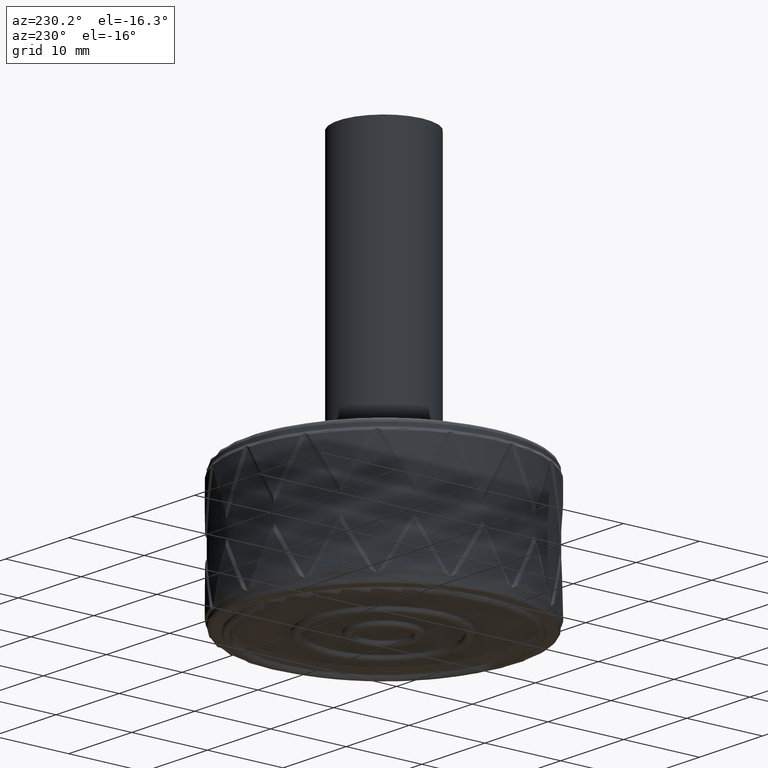
[diagram: clean part render]
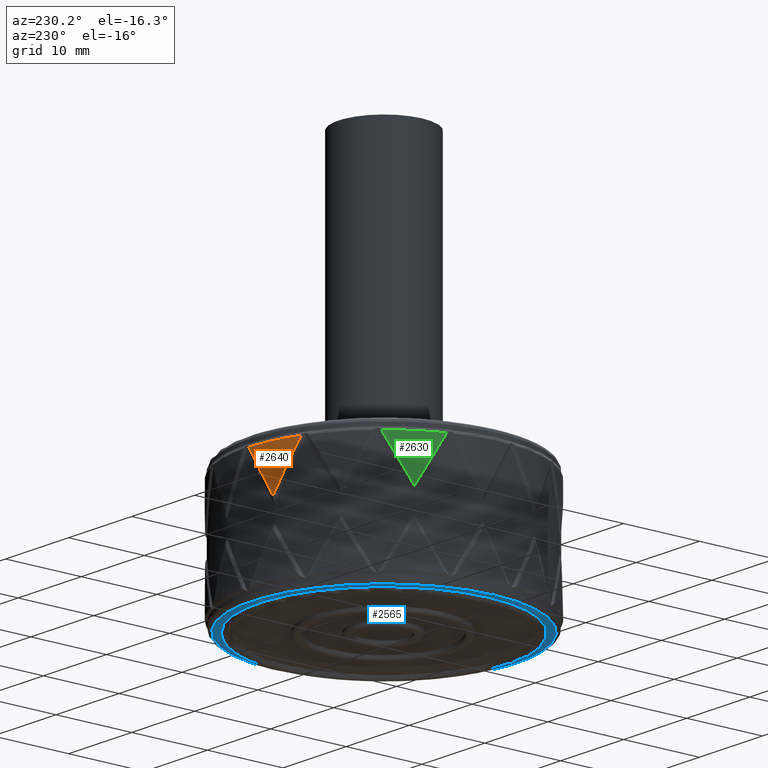
[diagram: same view with three faces highlighted in distinct colors, each labeled with its STEP entity id]
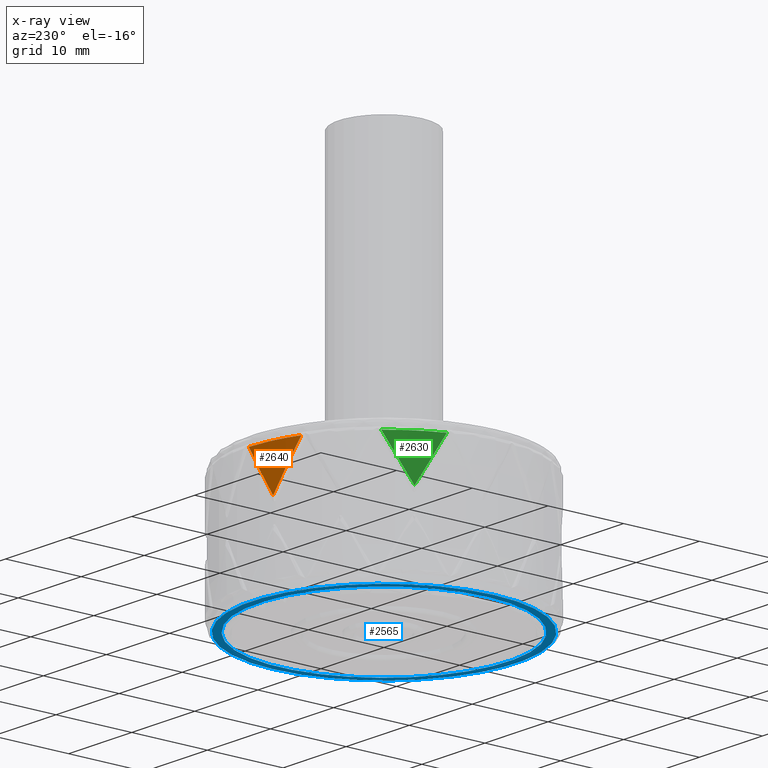
[diagram: x-ray of the same camera — body ghosted, the three highlighted faces saturated]
A machine part, auxiliary view with three faces highlighted in distinct colors.
The next image is the same camera in x-ray (body ghosted, the three faces saturated) — at least one of them is partly hidden behind the body in this view.
Their STEP definitions:

[orange] entity #2640 — the highlighted cylindrical surface (partial cylindrical patch) has radius 18.2 mm, axis along (0, 0, 1).
#383=B_SPLINE_CURVE_WITH_KNOTS('',3,(#8209,#8210,#8211,#8212),
 .UNSPECIFIED.,.F.,.F.,(4,4),(0.068859223008688,0.73881707339551),
 .UNSPECIFIED.);
#388=B_SPLINE_CURVE_WITH_KNOTS('',3,(#8262,#8263,#8264,#8265),
 .UNSPECIFIED.,.F.,.F.,(4,4),(0.068404336274397,0.729777223361327),
 .UNSPECIFIED.);
#391=B_SPLINE_CURVE_WITH_KNOTS('',3,(#8310,#8311,#8312,#8313),
 .UNSPECIFIED.,.F.,.F.,(4,4),(0.0352149630250178,0.705171513300833),
 .UNSPECIFIED.);
#663=FACE_OUTER_BOUND('',#857,.T.);
#857=EDGE_LOOP('',(#2147,#2148,#2149));
#1180=VERTEX_POINT('',#8203);
#1181=VERTEX_POINT('',#8208);
#1184=VERTEX_POINT('',#8257);
#1526=EDGE_CURVE('',#1180,#1181,#383,.T.);
#1531=EDGE_CURVE('',#1184,#1180,#388,.T.);
#1534=EDGE_CURVE('',#1181,#1184,#391,.T.);
#2147=ORIENTED_EDGE('',*,*,#1534,.F.);
#2148=ORIENTED_EDGE('',*,*,#1526,.F.);
#2149=ORIENTED_EDGE('',*,*,#1531,.F.);
#2544=CYLINDRICAL_SURFACE('',#2767,18.2);
#2640=ADVANCED_FACE('',(#663),#2544,.T.);
#2767=AXIS2_PLACEMENT_3D('',#8450,#2877,#2878);
#2877=DIRECTION('center_axis',(0.,0.,1.));
#2878=DIRECTION('ref_axis',(0.978147600733806,0.207911690817759,0.));
#8203=CARTESIAN_POINT('',(-7.02668531567747,16.7888562288931,16.1000000701814));
#8208=CARTESIAN_POINT('',(-3.78399279278956,17.802286329124,10.2736076152264));
#8209=CARTESIAN_POINT('Ctrl Pts',(-7.02668406335292,16.7888528114131,16.0999999743676));
#8210=CARTESIAN_POINT('Ctrl Pts',(-5.98058409834335,17.2266387057731,14.1580273298792));
#8211=CARTESIAN_POINT('Ctrl Pts',(-4.89322683103785,17.5665178158529,12.2155784633689));
#8212=CARTESIAN_POINT('Ctrl Pts',(-3.78399398559944,17.8022904519942,10.2736074344596));
#8257=CARTESIAN_POINT('',(-0.409446492060354,18.1953937459495,16.1000000865614));
#8262=CARTESIAN_POINT('Ctrl Pts',(-0.409444895846005,18.1953238185146,16.0999999059279));
#8263=CARTESIAN_POINT('Ctrl Pts',(-2.67665987235642,18.1435714458149,16.0999997765601));
#8264=CARTESIAN_POINT('Ctrl Pts',(-4.93480721194735,17.6629589115787,16.0999999589298));
#8265=CARTESIAN_POINT('Ctrl Pts',(-7.02661151976679,16.7886796644559,16.099999994263));
#8310=CARTESIAN_POINT('Ctrl Pts',(-3.7839933678193,17.8022906799054,10.2736074154429));
#8311=CARTESIAN_POINT('Ctrl Pts',(-2.67476087091172,18.0380680164333,12.2155794610476));
#8312=CARTESIAN_POINT('Ctrl Pts',(-1.54317701222709,18.1698403415752,14.1580142872869));
#8313=CARTESIAN_POINT('Ctrl Pts',(-0.409446232075338,18.1953901373277,16.0999999822592));
#8450=CARTESIAN_POINT('Origin',(0.,0.,0.));

[blue] entity #2565 — the highlighted planar face has unit normal (0, 0, 1).
#543=PLANE('',#2742);
#569=FACE_BOUND('',#777,.T.);
#588=FACE_OUTER_BOUND('',#776,.T.);
#776=EDGE_LOOP('',(#1797));
#777=EDGE_LOOP('',(#1798));
#960=CIRCLE('',#2739,17.5);
#962=CIRCLE('',#2743,16.5);
#982=VERTEX_POINT('',#2967);
#1088=VERTEX_POINT('',#4541);
#1268=EDGE_CURVE('',#982,#982,#960,.T.);
#1374=EDGE_CURVE('',#1088,#1088,#962,.T.);
#1797=ORIENTED_EDGE('',*,*,#1268,.F.);
#1798=ORIENTED_EDGE('',*,*,#1374,.T.);
#2565=ADVANCED_FACE('',(#588,#569),#543,.F.);
#2739=AXIS2_PLACEMENT_3D('',#2968,#2821,#2822);
#2742=AXIS2_PLACEMENT_3D('',#4540,#2827,#2828);
#2743=AXIS2_PLACEMENT_3D('',#4542,#2829,#2830);
#2821=DIRECTION('center_axis',(0.,0.,1.));
#2822=DIRECTION('ref_axis',(-1.,0.,0.));
#2827=DIRECTION('center_axis',(0.,0.,1.));
#2828=DIRECTION('ref_axis',(1.,0.,0.));
#2829=DIRECTION('center_axis',(0.,0.,1.));
#2830=DIRECTION('ref_axis',(1.,0.,0.));
#2967=CARTESIAN_POINT('',(17.5,2.14313189850787E-15,0.));
#2968=CARTESIAN_POINT('Origin',(0.,0.,0.));
#4540=CARTESIAN_POINT('Origin',(-1.00608444552037E-15,4.11193712824132E-16,
0.));
#4541=CARTESIAN_POINT('',(-16.5,2.02066721859313E-15,0.));
#4542=CARTESIAN_POINT('Origin',(0.,0.,0.));

[green] entity #2630 — the highlighted cylindrical surface (partial cylindrical patch) has radius 18.2 mm, axis along (0, 0, 1).
#363=B_SPLINE_CURVE_WITH_KNOTS('',3,(#7665,#7666,#7667,#7668),
 .UNSPECIFIED.,.F.,.F.,(4,4),(0.0688592229909446,0.738817073618382),
 .UNSPECIFIED.);
#368=B_SPLINE_CURVE_WITH_KNOTS('',3,(#7718,#7719,#7720,#7721),
 .UNSPECIFIED.,.F.,.F.,(4,4),(0.0684043362743966,0.729777223361328),
 .UNSPECIFIED.);
#371=B_SPLINE_CURVE_WITH_KNOTS('',3,(#7766,#7767,#7768,#7769),
 .UNSPECIFIED.,.F.,.F.,(4,4),(0.0352149656514121,0.705171513363135),
 .UNSPECIFIED.);
#653=FACE_OUTER_BOUND('',#847,.T.);
#847=EDGE_LOOP('',(#2097,#2098,#2099));
#1170=VERTEX_POINT('',#7659);
#1171=VERTEX_POINT('',#7664);
#1174=VERTEX_POINT('',#7713);
#1506=EDGE_CURVE('',#1170,#1171,#363,.T.);
#1511=EDGE_CURVE('',#1174,#1170,#368,.T.);
#1514=EDGE_CURVE('',#1171,#1174,#371,.T.);
#2097=ORIENTED_EDGE('',*,*,#1514,.F.);
#2098=ORIENTED_EDGE('',*,*,#1506,.F.);
#2099=ORIENTED_EDGE('',*,*,#1511,.F.);
#2542=CYLINDRICAL_SURFACE('',#2765,18.2);
#2630=ADVANCED_FACE('',(#653),#2542,.T.);
#2765=AXIS2_PLACEMENT_3D('',#7906,#2873,#2874);
#2873=DIRECTION('center_axis',(0.,0.,1.));
#2874=DIRECTION('ref_axis',(0.5,0.866025403784438,0.));
#7659=CARTESIAN_POINT('',(-17.178321838158,6.01209271590723,16.1000000701814));
#7664=CARTESIAN_POINT('',(-15.7616623590523,9.09999998237547,10.2736076152264));
#7665=CARTESIAN_POINT('Ctrl Pts',(-17.1783184634752,6.01209136109698,16.0999999744957));
#7666=CARTESIAN_POINT('Ctrl Pts',(-16.8036793132349,7.08243109300827,14.1580273290283));
#7667=CARTESIAN_POINT('Ctrl Pts',(-16.3286749603204,8.11791866103914,12.2155784594017));
#7668=CARTESIAN_POINT('Ctrl Pts',(-15.7616662689475,9.10000187792741,10.2736074322398));
#7713=CARTESIAN_POINT('',(-13.79578588933,11.8708168082809,16.1000000865614));
#7718=CARTESIAN_POINT('Ctrl Pts',(-13.7957328550427,11.8707712039124,16.0999999059279));
#7719=CARTESIAN_POINT('Ctrl Pts',(-15.2743362790431,10.1512730293488,16.09999977656));
#7720=CARTESIAN_POINT('Ctrl Pts',(-16.4281670597539,8.15154996230904,16.0999999589298));
#7721=CARTESIAN_POINT('Ctrl Pts',(-17.1781412461077,6.01202941228749,16.099999994263));
#7766=CARTESIAN_POINT('Ctrl Pts',(-15.7616658407338,9.10000237424694,10.2736074221801));
#7767=CARTESIAN_POINT('Ctrl Pts',(-15.1946604409054,10.08208803899,12.2155793769664));
#7768=CARTESIAN_POINT('Ctrl Pts',(-14.5354097034725,11.0111922032556,14.1580142840507));
#7769=CARTESIAN_POINT('Ctrl Pts',(-13.7957830255466,11.87081458081,16.0999999818507));
#7906=CARTESIAN_POINT('Origin',(0.,0.,0.));